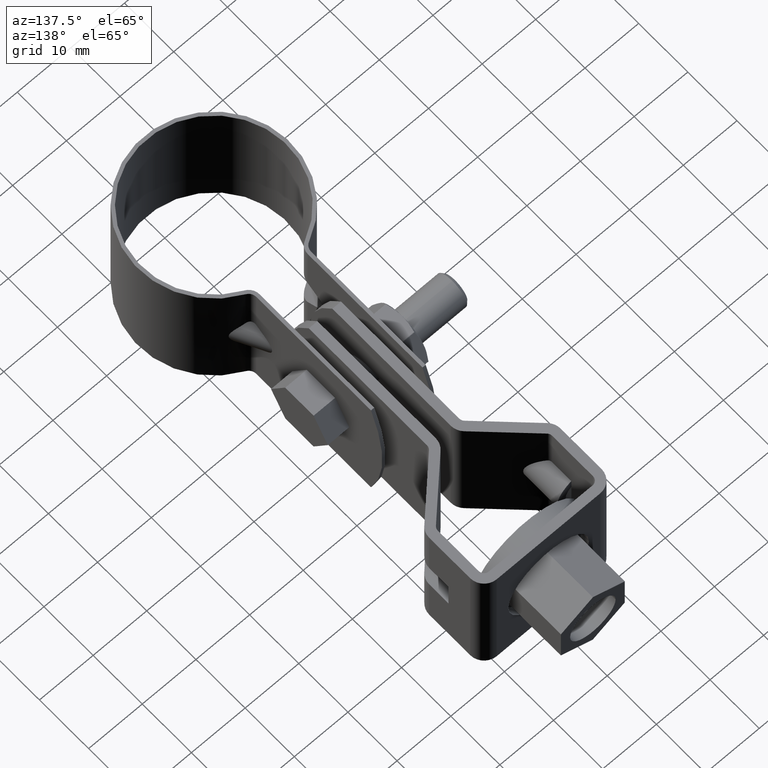
[diagram: clean part render]
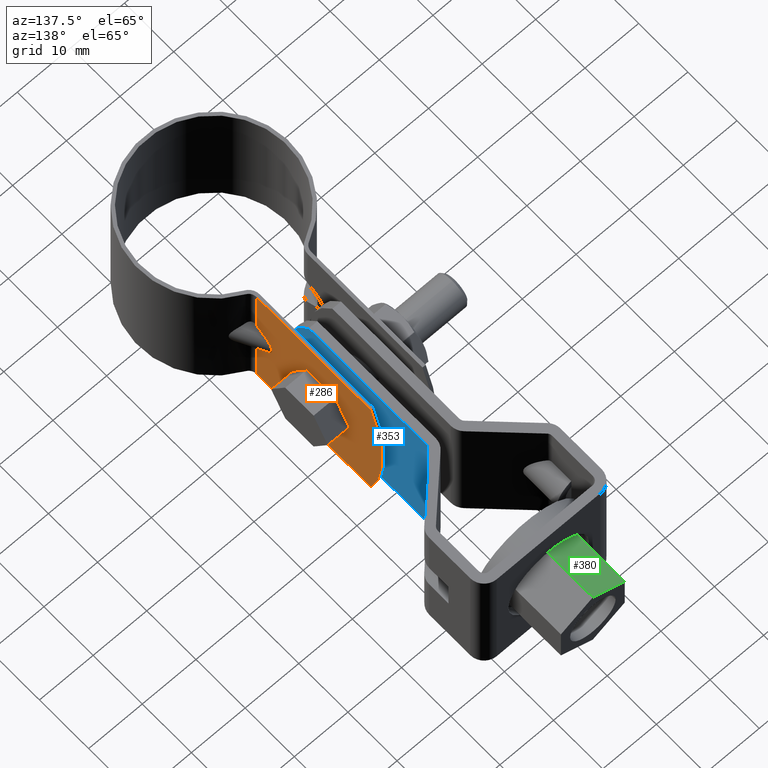
[diagram: same view with three faces highlighted in distinct colors, each labeled with its STEP entity id]
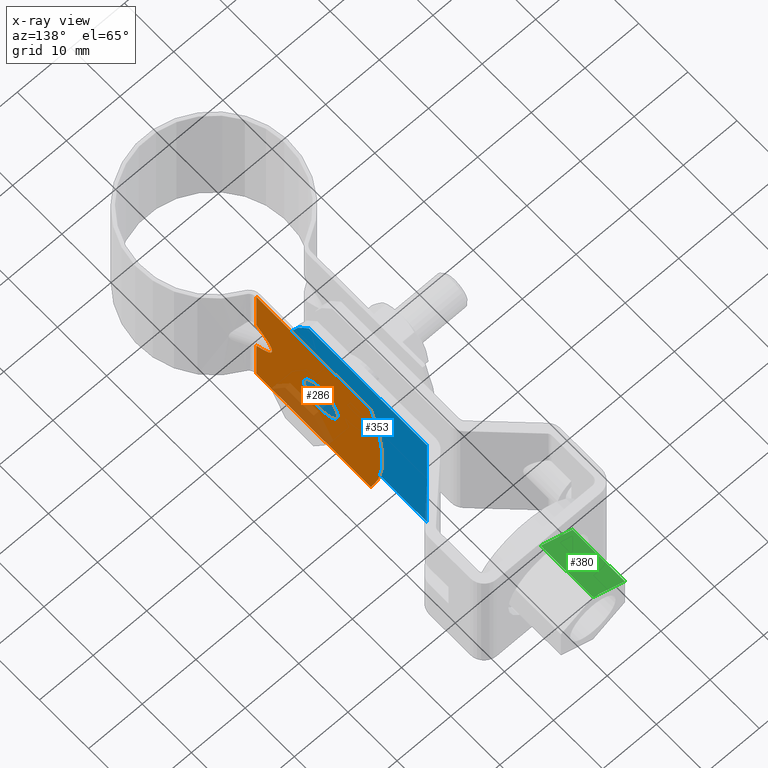
[diagram: x-ray of the same camera — body ghosted, the three highlighted faces saturated]
A machine part, auxiliary view with three faces highlighted in distinct colors.
The next image is the same camera in x-ray (body ghosted, the three faces saturated) — at least one of them is partly hidden behind the body in this view.
Their STEP definitions:

[orange] entity #286 — the highlighted planar face has unit normal (1, -0, 0).
#286 = ADVANCED_FACE( '', ( #431, #432 ), #433, .T. );
#431 = FACE_OUTER_BOUND( '', #703, .T. );
#432 = FACE_BOUND( '', #704, .T. );
#433 = PLANE( '', #705 );
#703 = EDGE_LOOP( '', ( #1084, #1085, #1086, #1087, #1088, #1089, #1090, #1091 ) );
#704 = EDGE_LOOP( '', ( #1092 ) );
#705 = AXIS2_PLACEMENT_3D( '', #1093, #1094, #1095 );
#1084 = ORIENTED_EDGE( '', *, *, #1964, .F. );
#1085 = ORIENTED_EDGE( '', *, *, #2004, .F. );
#1086 = ORIENTED_EDGE( '', *, *, #2005, .F. );
#1087 = ORIENTED_EDGE( '', *, *, #2006, .F. );
#1088 = ORIENTED_EDGE( '', *, *, #1939, .T. );
#1089 = ORIENTED_EDGE( '', *, *, #1999, .T. );
#1090 = ORIENTED_EDGE( '', *, *, #2007, .F. );
#1091 = ORIENTED_EDGE( '', *, *, #1950, .F. );
#1092 = ORIENTED_EDGE( '', *, *, #1993, .T. );
#1093 = CARTESIAN_POINT( '', ( 5.10000000000000, 14.1813257490264, -12.5000000000000 ) );
#1094 = DIRECTION( '', ( 1.00000000000000, -6.06692130572647E-017, 0.000000000000000 ) );
#1095 = DIRECTION( '', ( 6.06692130572647E-017, 1.00000000000000, 0.000000000000000 ) );
#1939 = EDGE_CURVE( '', #2262, #2259, #2263, .T. );
#1950 = EDGE_CURVE( '', #2280, #2283, #2284, .T. );
#1964 = EDGE_CURVE( '', #2306, #2280, #2308, .T. );
#1993 = EDGE_CURVE( '', #2357, #2357, #2358, .F. );
#1999 = EDGE_CURVE( '', #2259, #2367, #2369, .T. );
#2004 = EDGE_CURVE( '', #2375, #2306, #2376, .T. );
#2005 = EDGE_CURVE( '', #2377, #2375, #2378, .T. );
#2006 = EDGE_CURVE( '', #2262, #2377, #2379, .T. );
#2007 = EDGE_CURVE( '', #2283, #2367, #2380, .T. );
#2259 = VERTEX_POINT( '', #2793 );
#2262 = VERTEX_POINT( '', #2797 );
#2263 = LINE( '', #2798, #2799 );
#2280 = VERTEX_POINT( '', #2820 );
#2283 = VERTEX_POINT( '', #2823 );
#2284 = LINE( '', #2824, #2825 );
#2306 = VERTEX_POINT( '', #2885 );
#2308 = LINE( '', #2888, #2889 );
#2357 = VERTEX_POINT( '', #2984 );
#2358 = CIRCLE( '', #2985, 3.50000000000000 );
#2367 = VERTEX_POINT( '', #2995 );
#2369 = CIRCLE( '', #2998, 35.0000000000000 );
#2375 = VERTEX_POINT( '', #3007 );
#2376 = ELLIPSE( '', #3008, 8.81075705834106, 4.00000000000000 );
#2377 = VERTEX_POINT( '', #3009 );
#2378 = LINE( '', #3010, #3011 );
#2379 = LINE( '', #3012, #3013 );
#2380 = LINE( '', #3014, #3015 );
#2793 = CARTESIAN_POINT( '', ( 5.10000000000000, 37.5256814561844, -12.5000000000000 ) );
#2797 = CARTESIAN_POINT( '', ( 5.10000000000000, 14.1813257490264, -12.5000000000000 ) );
#2798 = CARTESIAN_POINT( '', ( 5.10000000000000, 14.1813257490264, -12.5000000000000 ) );
#2799 = VECTOR( '', #3682, 1000.00000000000 );
#2820 = CARTESIAN_POINT( '', ( 5.10000000000000, 14.1813257490264, 3.36142550010246 ) );
#2823 = CARTESIAN_POINT( '', ( 5.10000000000000, 14.1813257490264, 12.5000000000000 ) );
#2824 = CARTESIAN_POINT( '', ( 5.10000000000000, 14.1813257490264, -12.5000000000000 ) );
#2825 = VECTOR( '', #3705, 1000.00000000000 );
#2885 = CARTESIAN_POINT( '', ( 5.10000000000000, 15.8271868338750, 2.29430574540416 ) );
#2888 = CARTESIAN_POINT( '', ( 5.10000000000000, 21.4216541620908, -1.33295457316816 ) );
#2889 = VECTOR( '', #3729, 1000.00000000000 );
#2984 = CARTESIAN_POINT( '', ( 5.10000000000000, 30.8339393796293, -8.67361737988404E-016 ) );
#2985 = AXIS2_PLACEMENT_3D( '', #3784, #3785, #3786 );
#2995 = CARTESIAN_POINT( '', ( 5.10000000000000, 37.5256814561844, 12.5000000000000 ) );
#2998 = AXIS2_PLACEMENT_3D( '', #3798, #3799, #3800 );
#3007 = CARTESIAN_POINT( '', ( 5.10000000000000, 15.8271868338749, -2.29430574540421 ) );
#3008 = AXIS2_PLACEMENT_3D( '', #3807, #3808, #3809 );
#3009 = CARTESIAN_POINT( '', ( 5.10000000000000, 14.1813257490264, -3.36142550010249 ) );
#3010 = CARTESIAN_POINT( '', ( 5.10000000000000, 10.0098040528153, -6.06609678139059 ) );
#3011 = VECTOR( '', #3810, 1000.00000000000 );
#3012 = CARTESIAN_POINT( '', ( 5.10000000000000, 14.1813257490264, -12.5000000000000 ) );
#3013 = VECTOR( '', #3811, 1000.00000000000 );
#3014 = CARTESIAN_POINT( '', ( 5.10000000000000, 14.1813257490264, 12.5000000000000 ) );
#3015 = VECTOR( '', #3812, 1000.00000000000 );
#3682 = DIRECTION( '', ( 6.06692130572647E-017, 1.00000000000000, 0.000000000000000 ) );
#3705 = DIRECTION( '', ( 0.000000000000000, 0.000000000000000, 1.00000000000000 ) );
#3729 = DIRECTION( '', ( -5.09056978337516E-017, -0.839069690679893, 0.544023946331730 ) );
#3784 = CARTESIAN_POINT( '', ( 5.10000000000000, 27.3339393796293, -8.67361737988404E-016 ) );
#3785 = DIRECTION( '', ( 1.00000000000000, -6.06692130572647E-017, 0.000000000000000 ) );
#3786 = DIRECTION( '', ( 6.06692130572647E-017, 1.00000000000000, 0.000000000000000 ) );
#3798 = CARTESIAN_POINT( '', ( 5.10000000000000, 4.83393937962930, -1.38777878078145E-014 ) );
#3799 = DIRECTION( '', ( 1.00000000000000, -6.06692130572647E-017, 0.000000000000000 ) );
#3800 = DIRECTION( '', ( 6.06692130572647E-017, 1.00000000000000, 0.000000000000000 ) );
#3807 = CARTESIAN_POINT( '', ( 5.10000000000000, 8.60983717780125, -3.07505438184128E-014 ) );
#3808 = DIRECTION( '', ( 1.00000000000000, -6.06692130572647E-017, 0.000000000000000 ) );
#3809 = DIRECTION( '', ( 6.06692130572647E-017, 1.00000000000000, 9.96825944130074E-016 ) );
#3810 = DIRECTION( '', ( 8.05405233250115E-017, 0.839069690679892, 0.544023946331730 ) );
#3811 = DIRECTION( '', ( 0.000000000000000, 0.000000000000000, 1.00000000000000 ) );
#3812 = DIRECTION( '', ( 6.06692130572647E-017, 1.00000000000000, 0.000000000000000 ) );

[blue] entity #353 — the highlighted planar face has unit normal (1, -0, -0).
#353 = ADVANCED_FACE( '', ( #578, #579 ), #580, .T. );
#578 = FACE_BOUND( '', #850, .T. );
#579 = FACE_OUTER_BOUND( '', #851, .T. );
#580 = PLANE( '', #852 );
#850 = EDGE_LOOP( '', ( #1635 ) );
#851 = EDGE_LOOP( '', ( #1636, #1637, #1638, #1639 ) );
#852 = AXIS2_PLACEMENT_3D( '', #1640, #1641, #1642 );
#1635 = ORIENTED_EDGE( '', *, *, #2178, .T. );
#1636 = ORIENTED_EDGE( '', *, *, #2121, .F. );
#1637 = ORIENTED_EDGE( '', *, *, #2169, .T. );
#1638 = ORIENTED_EDGE( '', *, *, #2179, .T. );
#1639 = ORIENTED_EDGE( '', *, *, #2176, .T. );
#1640 = CARTESIAN_POINT( '', ( 3.00000000366650, 47.0595484958126, 12.5000012093951 ) );
#1641 = DIRECTION( '', ( 1.00000000000000, -1.39875280085873E-011, -1.87699318091870E-011 ) );
#1642 = DIRECTION( '', ( 1.39875281959770E-011, 1.00000000000000, 9.98350074832280E-009 ) );
#2121 = EDGE_CURVE( '', #2572, #2574, #2575, .T. );
#2169 = EDGE_CURVE( '', #2572, #2650, #2653, .F. );
#2176 = EDGE_CURVE( '', #2660, #2574, #2664, .T. );
#2178 = EDGE_CURVE( '', #2667, #2667, #2668, .F. );
#2179 = EDGE_CURVE( '', #2650, #2660, #2669, .T. );
#2572 = VERTEX_POINT( '', #3326 );
#2574 = VERTEX_POINT( '', #3328 );
#2575 = LINE( '', #3329, #3330 );
#2650 = VERTEX_POINT( '', #3460 );
#2653 = LINE( '', #3463, #3464 );
#2660 = VERTEX_POINT( '', #3474 );
#2664 = CIRCLE( '', #3479, 19.6111110000000 );
#2667 = VERTEX_POINT( '', #3482 );
#2668 = CIRCLE( '', #3483, 5.25000000000000 );
#2669 = LINE( '', #3484, #3485 );
#3326 = CARTESIAN_POINT( '', ( 3.00000000319136, 46.6380849765100, -12.4999987948126 ) );
#3328 = CARTESIAN_POINT( '', ( 3.00000000285492, 22.5839386099694, -12.4999990408705 ) );
#3329 = CARTESIAN_POINT( '', ( 3.00000000319725, 47.0595487454001, -12.4999987906049 ) );
#3330 = VECTOR( '', #3998, 1000.00000000000 );
#3460 = CARTESIAN_POINT( '', ( 3.00000000366061, 46.6380847269225, 12.5000012051874 ) );
#3463 = CARTESIAN_POINT( '', ( 3.00000000366061, 46.6380847269225, 12.5000012051874 ) );
#3464 = VECTOR( '', #4070, 1000.00000000000 );
#3474 = CARTESIAN_POINT( '', ( 3.00000000332414, 22.5839383554904, 12.5000009650428 ) );
#3479 = AXIS2_PLACEMENT_3D( '', #4081, #4082, #4083 );
#3482 = CARTESIAN_POINT( '', ( 3.00000000326786, 35.3339384471959, 1.09233246033125E-006 ) );
#3483 = AXIS2_PLACEMENT_3D( '', #4087, #4088, #4089 );
#3484 = CARTESIAN_POINT( '', ( 3.00000000366650, 47.0595484958126, 12.5000012093951 ) );
#3485 = VECTOR( '', #4090, 1000.00000000000 );
#3998 = DIRECTION( '', ( -1.39878612628843E-011, -1.00000000000000, -9.98350074832280E-009 ) );
#4070 = DIRECTION( '', ( -1.87699316695425E-011, 9.98350068858617E-009, -1.00000000000000 ) );
#4081 = CARTESIAN_POINT( '', ( 3.00000000330089, 37.6950494471959, 1.11590459095368E-006 ) );
#4082 = DIRECTION( '', ( 1.00000000000000, -1.39875280085873E-011, -1.87699318091870E-011 ) );
#4083 = DIRECTION( '', ( 1.39875281959770E-011, 1.00000000000000, 9.98350074832280E-009 ) );
#4087 = CARTESIAN_POINT( '', ( 3.00000000319443, 30.0839384471959, 1.03991908140255E-006 ) );
#4088 = DIRECTION( '', ( 1.00000000000000, -1.39875280085873E-011, -1.87699318091870E-011 ) );
#4089 = DIRECTION( '', ( 1.39875281959770E-011, 1.00000000000000, 9.98350074832281E-009 ) );
#4090 = DIRECTION( '', ( -1.39878612628843E-011, -1.00000000000000, -9.98350074832280E-009 ) );

[green] entity #380 — the highlighted planar face has unit normal (0.5, 0, -0.866).
#380 = ADVANCED_FACE( '', ( #640 ), #641, .F. );
#640 = FACE_OUTER_BOUND( '', #912, .T. );
#641 = PLANE( '', #913 );
#912 = EDGE_LOOP( '', ( #1874, #1875, #1876, #1877 ) );
#913 = AXIS2_PLACEMENT_3D( '', #1878, #1879, #1880 );
#1874 = ORIENTED_EDGE( '', *, *, #2238, .T. );
#1875 = ORIENTED_EDGE( '', *, *, #2239, .F. );
#1876 = ORIENTED_EDGE( '', *, *, #2240, .F. );
#1877 = ORIENTED_EDGE( '', *, *, #2230, .T. );
#1878 = CARTESIAN_POINT( '', ( -5.94999999608367, 77.0839384130255, 3.43523561098989 ) );
#1879 = DIRECTION( '', ( 0.499999999983745, 8.63897139172214E-009, -0.866025403793824 ) );
#1880 = DIRECTION( '', ( -0.866025403793824, 5.00386412104938E-009, -0.499999999983745 ) );
#2230 = EDGE_CURVE( '', #2748, #2746, #2749, .T. );
#2238 = EDGE_CURVE( '', #2746, #2761, #2763, .T. );
#2239 = EDGE_CURVE( '', #2764, #2761, #2765, .T. );
#2240 = EDGE_CURVE( '', #2748, #2764, #2766, .T. );
#2746 = VERTEX_POINT( '', #3618 );
#2748 = VERTEX_POINT( '', #3621 );
#2749 = LINE( '', #3622, #3623 );
#2761 = VERTEX_POINT( '', #3640 );
#2763 = LINE( '', #3643, #3644 );
#2764 = VERTEX_POINT( '', #3645 );
#2765 = LINE( '', #3646, #3647 );
#2766 = LINE( '', #3648, #3649 );
#3618 = CARTESIAN_POINT( '', ( -5.94999999623194, 66.4839384130255, 3.43523550516478 ) );
#3621 = CARTESIAN_POINT( '', ( -5.94999999608367, 77.0839384130255, 3.43523561098989 ) );
#3622 = CARTESIAN_POINT( '', ( -5.94999999608367, 77.0839384130255, 3.43523561098989 ) );
#3623 = VECTOR( '', #4167, 1000.00000000000 );
#3640 = CARTESIAN_POINT( '', ( 3.83254177891937E-009, 66.4839383786466, 6.87046960673136 ) );
#3643 = CARTESIAN_POINT( '', ( -5.94999999623194, 66.4839384130255, 3.43523550516478 ) );
#3644 = VECTOR( '', #4177, 1000.00000000000 );
#3645 = CARTESIAN_POINT( '', ( 3.98081193146953E-009, 77.0839383786466, 6.87046971255648 ) );
#3646 = CARTESIAN_POINT( '', ( 3.98081193146953E-009, 77.0839383786466, 6.87046971255648 ) );
#3647 = VECTOR( '', #4178, 1000.00000000000 );
#3648 = CARTESIAN_POINT( '', ( -5.94999999608367, 77.0839384130255, 3.43523561098989 ) );
#3649 = VECTOR( '', #4179, 1000.00000000000 );
#4167 = DIRECTION( '', ( -1.39877502405819E-011, -1.00000000000000, -9.98350074832280E-009 ) );
#4177 = DIRECTION( '', ( 0.866025403793824, -5.00386412104938E-009, 0.499999999983745 ) );
#4178 = DIRECTION( '', ( -1.39877502405819E-011, -1.00000000000000, -9.98350074832280E-009 ) );
#4179 = DIRECTION( '', ( 0.866025403793824, -5.00386412104938E-009, 0.499999999983745 ) );